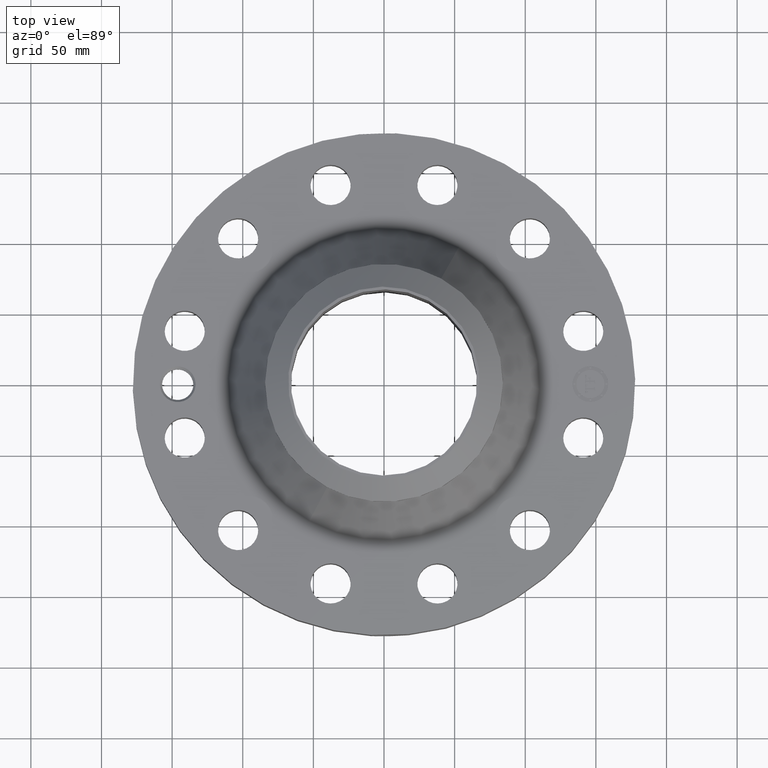
[diagram: clean part render]
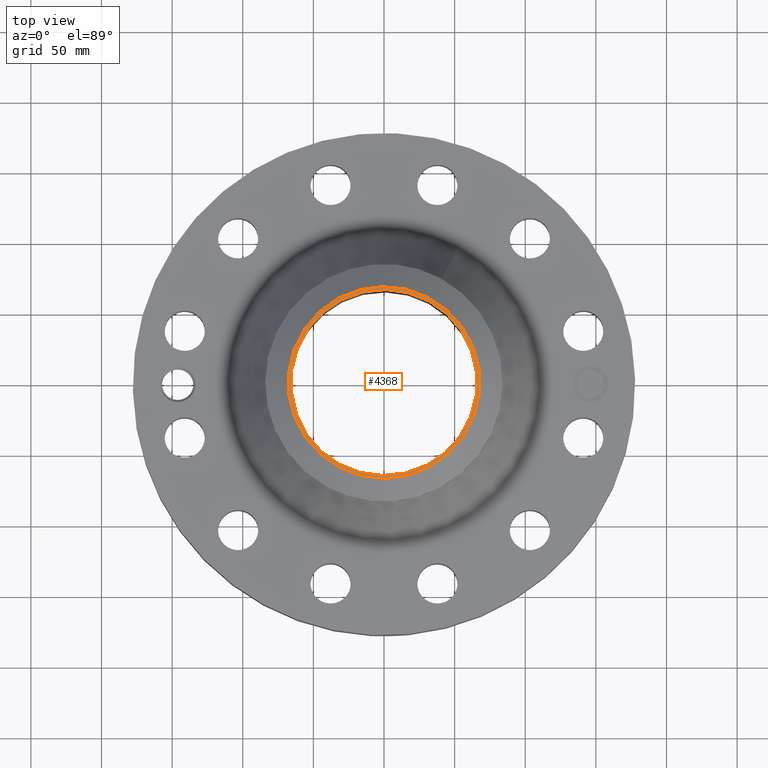
[diagram: same view with one face highlighted and labeled with its STEP entity id]
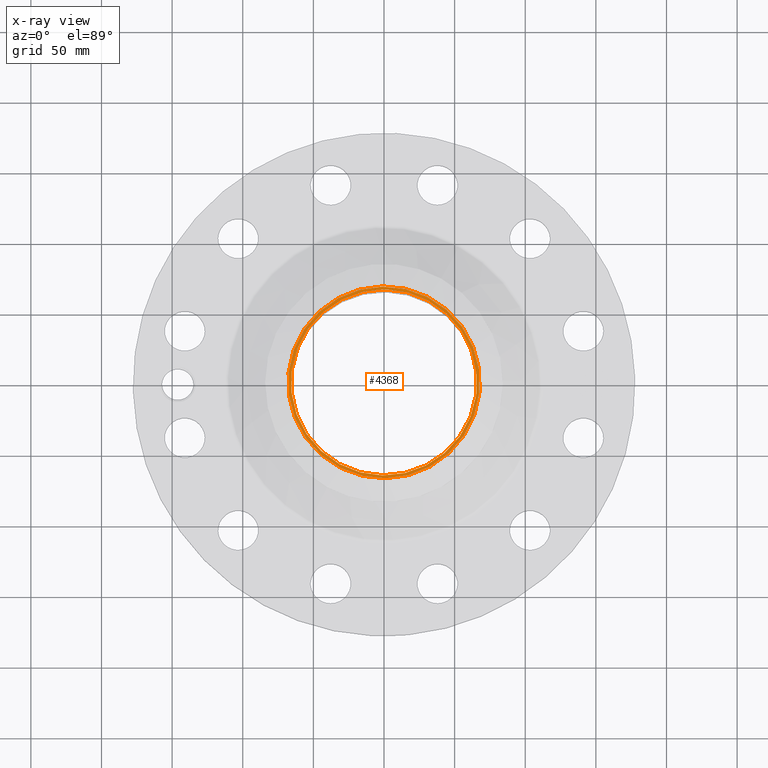
[diagram: x-ray of the same camera — body ghosted, the highlighted face saturated]
A machine part, top view. The second image highlights one B-rep face of the part: STEP entity #4368.
The next image is the same camera in x-ray: the body ghosted, the highlighted face saturated — about 0% of this face is hidden behind the body in this view.
In plain terms, the highlighted planar face has unit normal (0, 0, -1).
Its self-contained STEP definition (entity closure, byte-faithful):
#3187=AXIS2_PLACEMENT_3D('Circle Axis2P3D',#3185,#3186,$) ;
#3255=AXIS2_PLACEMENT_3D('Circle Axis2P3D',#3253,#3254,$) ;
#4344=AXIS2_PLACEMENT_3D('Plane Axis2P3D',#4341,#4342,#4343) ;
#4348=AXIS2_PLACEMENT_3D('Circle Axis2P3D',#4346,#4347,$) ;
#4357=AXIS2_PLACEMENT_3D('Circle Axis2P3D',#4355,#4356,$) ;
#3185=CARTESIAN_POINT('Axis2P3D Location',(0.,0.,4.87000000002)) ;
#3189=CARTESIAN_POINT('Vertex',(1.24339013437,2.27601037427,4.87000000002)) ;
#3191=CARTESIAN_POINT('Vertex',(-1.24339013437,-2.27601037427,4.87000000002)) ;
#3253=CARTESIAN_POINT('Axis2P3D Location',(0.,0.,4.87000000002)) ;
#4341=CARTESIAN_POINT('Axis2P3D Location',(0.,3.31500000001,4.87000000002)) ;
#4346=CARTESIAN_POINT('Axis2P3D Location',(0.,0.,4.87000000002)) ;
#4350=CARTESIAN_POINT('Vertex',(1.28114017678,-2.3451113634,4.87000000002)) ;
#4352=CARTESIAN_POINT('Vertex',(-1.28114017678,2.3451113634,4.87000000002)) ;
#4355=CARTESIAN_POINT('Axis2P3D Location',(0.,0.,4.87000000002)) ;
#3186=DIRECTION('Axis2P3D Direction',(0.,0.,-0.0393700787402)) ;
#3254=DIRECTION('Axis2P3D Direction',(0.,0.,-0.0393700787402)) ;
#4342=DIRECTION('Axis2P3D Direction',(0.,0.,-0.0393700787402)) ;
#4343=DIRECTION('Axis2P3D XDirection',(0.0393700787402,0.,0.)) ;
#4347=DIRECTION('Axis2P3D Direction',(0.,0.,-0.0393700787402)) ;
#4356=DIRECTION('Axis2P3D Direction',(0.,0.,-0.0393700787402)) ;
#4361=ORIENTED_EDGE('',*,*,#4354,.T.) ;
#4362=ORIENTED_EDGE('',*,*,#4359,.T.) ;
#4365=ORIENTED_EDGE('',*,*,#3257,.T.) ;
#4366=ORIENTED_EDGE('',*,*,#3193,.T.) ;
#4367=FACE_BOUND('',#4364,.T.) ;
#4368=ADVANCED_FACE('PartBody',(#4363,#4367),#4345,.F.) ;
#3188=CIRCLE('generated circle',#3187,2.59350000001) ;
#3256=CIRCLE('generated circle',#3255,2.59350000001) ;
#4349=CIRCLE('generated circle',#4348,2.67224015749) ;
#4358=CIRCLE('generated circle',#4357,2.67224015749) ;
#3193=EDGE_CURVE('',#3190,#3192,#3188,.T.) ;
#3257=EDGE_CURVE('',#3192,#3190,#3256,.T.) ;
#4354=EDGE_CURVE('',#4351,#4353,#4349,.F.) ;
#4359=EDGE_CURVE('',#4353,#4351,#4358,.F.) ;
#4360=EDGE_LOOP('',(#4361,#4362)) ;
#4364=EDGE_LOOP('',(#4365,#4366)) ;
#4363=FACE_OUTER_BOUND('',#4360,.T.) ;
#4345=PLANE('',#4344) ;
#3190=VERTEX_POINT('',#3189) ;
#3192=VERTEX_POINT('',#3191) ;
#4351=VERTEX_POINT('',#4350) ;
#4353=VERTEX_POINT('',#4352) ;